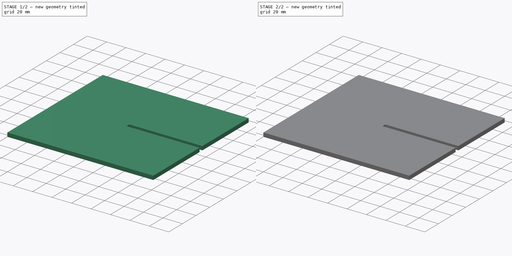
[diagram: build sequence overview — one tinted view per stage of 2, left to right]
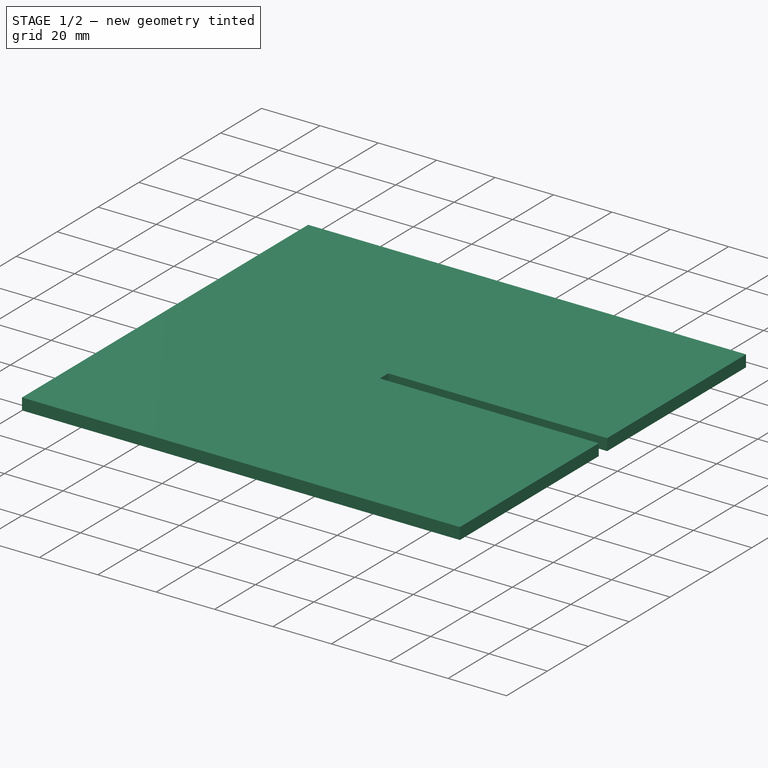
[diagram: stage 1 of 2 — iso view after this stage's code; geometry added in this stage tinted green]
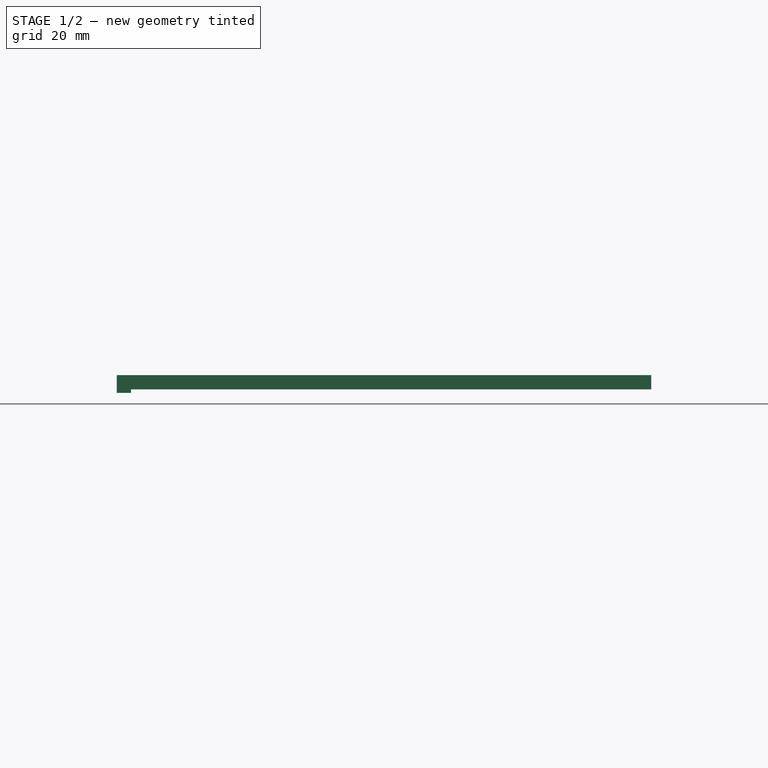
[diagram: stage 1 of 2 — front view after this stage's code; geometry added in this stage tinted green]
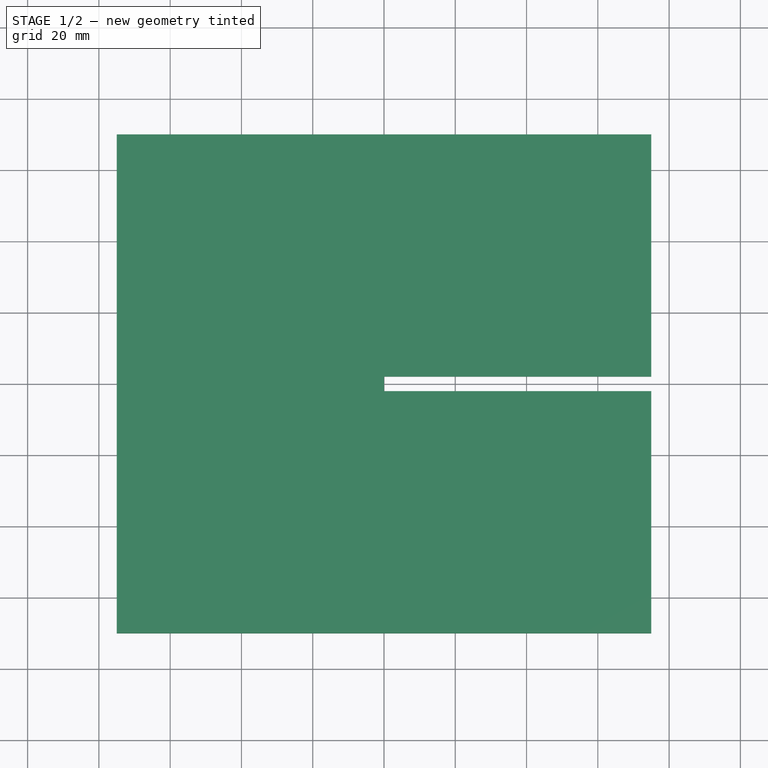
[diagram: stage 1 of 2 — top view after this stage's code; geometry added in this stage tinted green]
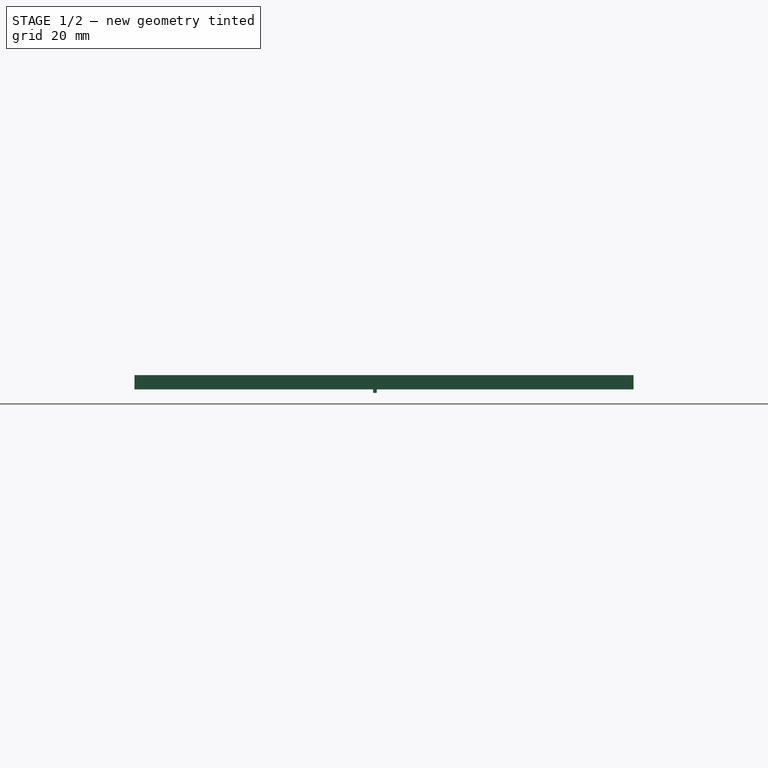
[diagram: stage 1 of 2 — right view after this stage's code; geometry added in this stage tinted green]
FCSTD DOCUMENT  (FreeCAD 0.19R22611 (Git))
Label: divider
License: All rights reserved
LicenseURL: http://en.wikipedia.org/wiki/All_rights_reserved
objects: Sketcher::SketchObject×3, PartDesign::Pad×3, PartDesign::Body×1
note: 10 computed .brp shape members not serialized (recipe doc carries the construction recipe); baked Part::Feature solids carry a one-line shape summary decoded from their .brp

FEATURE [Sketcher::SketchObject] Sketch
  MapMode = 5
  Support = -> [XY_Plane]
  sketch-geometry (8):
    g0: LineSegment StartX=75 StartY=70 StartZ=0 EndX=-75 EndY=70 EndZ=0
    g1: LineSegment StartX=-75 StartY=70 StartZ=0 EndX=-75 EndY=-70 EndZ=0
    g2: LineSegment StartX=-75 StartY=-70 StartZ=0 EndX=75 EndY=-70 EndZ=0
    g3: LineSegment StartX=75 StartY=-70 StartZ=0 EndX=75 EndY=-2.05 EndZ=0
    g4: LineSegment StartX=75 StartY=-2.05 StartZ=0 EndX=0 EndY=-2.05 EndZ=0
    g5: LineSegment StartX=0 StartY=-2.05 StartZ=0 EndX=0 EndY=2.05 EndZ=0
    g6: LineSegment StartX=0 StartY=2.05 StartZ=0 EndX=75 EndY=2.05 EndZ=0
    g7: LineSegment StartX=75 StartY=70 StartZ=0 EndX=75 EndY=2.05 EndZ=0
  constraints (21):
    c: Horizontal(g0)
    c: Coincident(g3,g2)
    c: Vertical(g3)
    c: Horizontal(g4)
    c: Coincident(g0,g1)
    c: Distance(g1) = 140
    c: Distance(g5) = 4.1
    c: Coincident(g4,g5)
    c: Symmetric(g2,g1,g-2)
    c: Equal(g2,g0)
    c: Coincident(g1,g2)
    c: Distance(g0) = 150
    c: Symmetric(g0,g1,g-1)
    c: Coincident(g3,g4)
    c: Coincident(g5,g6)
    c: Vertical(g7)
    c: Coincident(g0,g7)
    c: Coincident(g7,g6)
    c: Symmetric(g5,g4,g-1)
    c: Equal(g7,g3)
    c: PointOnObject(g-1,g5)
FEATURE [PartDesign::Pad] Pad
  Direction = (1,1,1)
  Length = 4
  Length2 = 100
  Profile = -> Sketch
  Type = 0
FEATURE [Sketcher::SketchObject] Sketch001
  MapMode = 5
  Placement = pos=(0,0,0) rot=(1,0,0;3.14159rad)
  Support = -> [Pad]
  sketch-geometry (4):
    g0: LineSegment StartX=-75 StartY=3.05 StartZ=0 EndX=-71 EndY=3.05 EndZ=0
    g1: LineSegment StartX=-71 StartY=3.05 StartZ=0 EndX=-71 EndY=2.05 EndZ=0
    g2: LineSegment StartX=-71 StartY=2.05 StartZ=0 EndX=-75 EndY=2.05 EndZ=0
    g3: LineSegment StartX=-75 StartY=2.05 StartZ=0 EndX=-75 EndY=3.05 EndZ=0
  constraints (12):
    c: Coincident(g0,g1)
    c: Coincident(g1,g2)
    c: Coincident(g2,g3)
    c: Coincident(g3,g0)
    c: Horizontal(g0)
    c: Horizontal(g2)
    c: Vertical(g1)
    c: Vertical(g3)
    c: Distance(g1) = 1
    c: Distance(g0) = 4
    c: DistanceY(g-1,g1) = 2.05
    c: DistanceX(g2,g-1) = 75
FEATURE [PartDesign::Pad] Pad001
  BaseFeature = -> Pad
  Direction = (1,1,1)
  Length = 1
  Length2 = 100
  Profile = -> Sketch001
  Type = 0
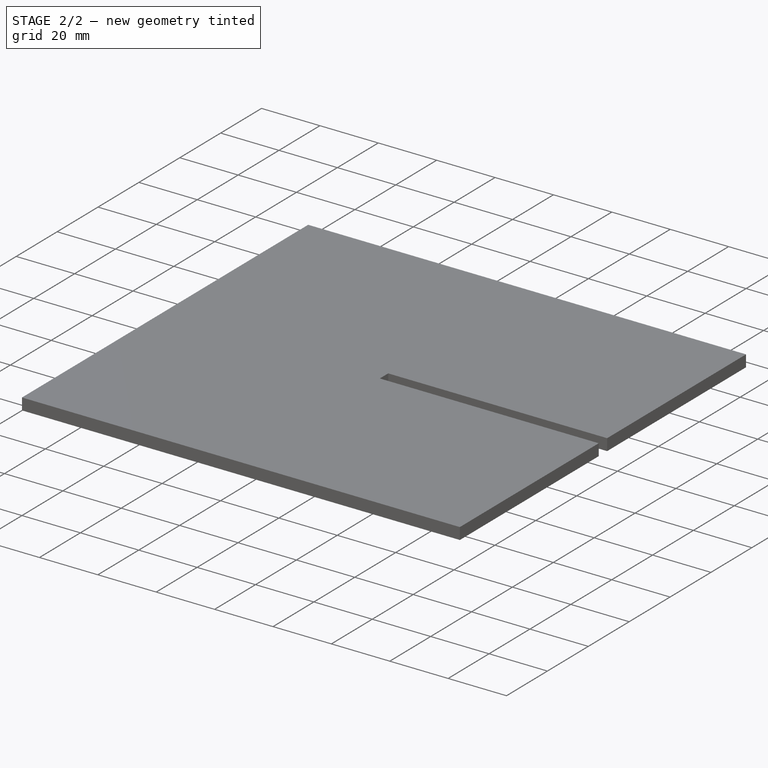
[diagram: stage 2 of 2 — iso view after this stage's code; geometry added in this stage tinted green]
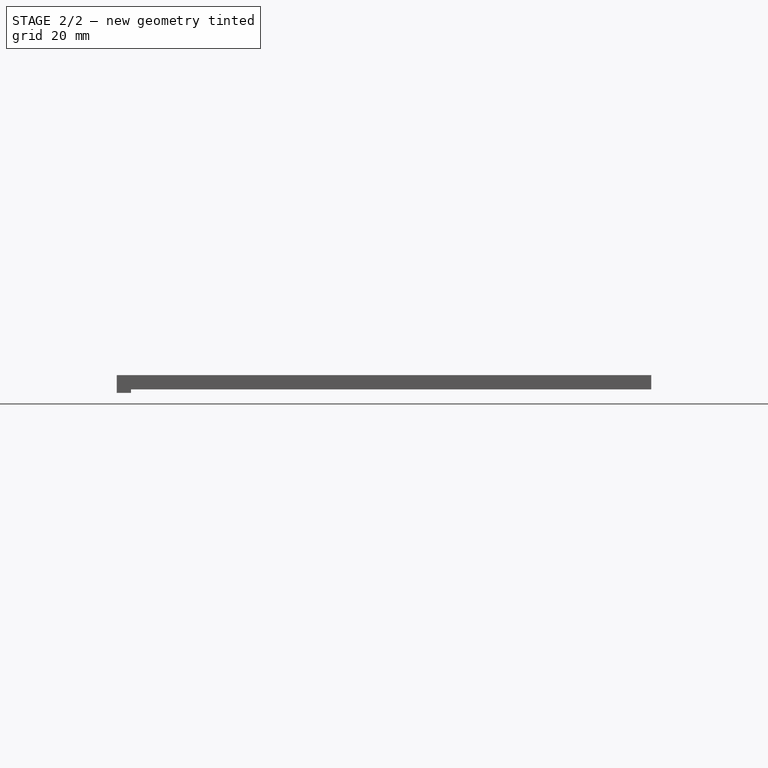
[diagram: stage 2 of 2 — front view after this stage's code; geometry added in this stage tinted green]
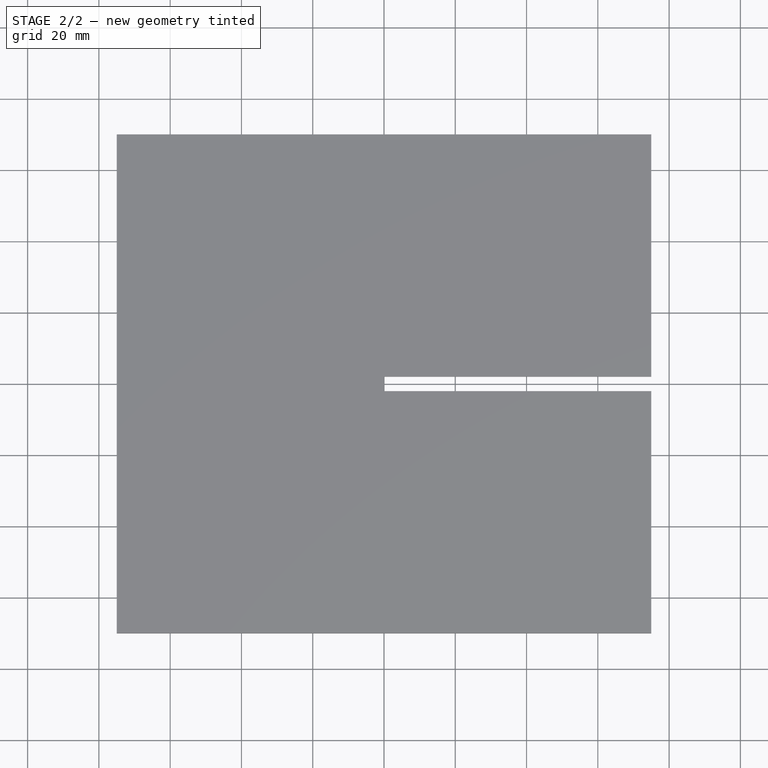
[diagram: stage 2 of 2 — top view after this stage's code; geometry added in this stage tinted green]
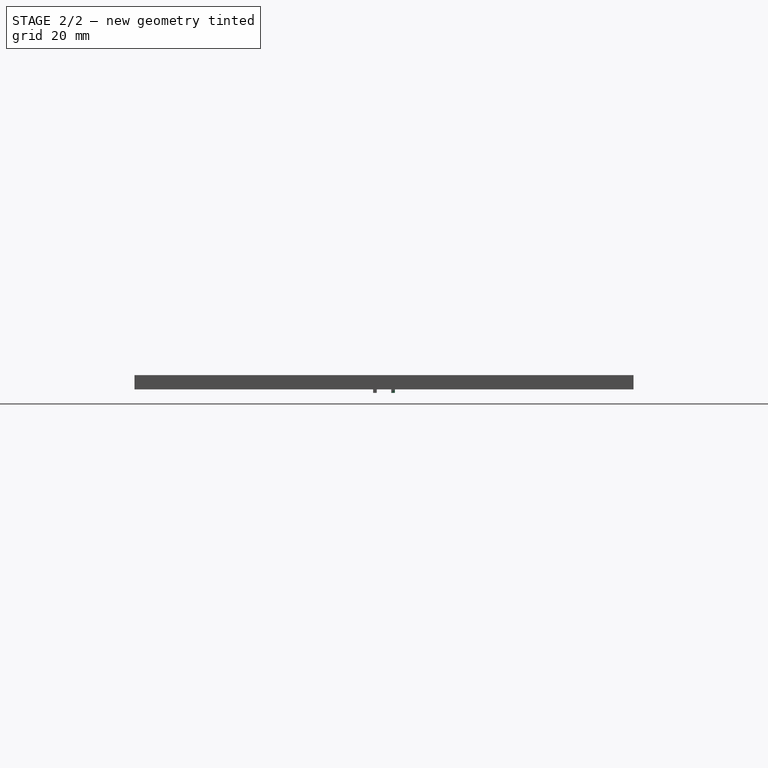
[diagram: stage 2 of 2 — right view after this stage's code; geometry added in this stage tinted green]
FEATURE [Sketcher::SketchObject] Sketch002
  MapMode = 5
  Placement = pos=(0,0,0) rot=(1,0,0;3.14159rad)
  Support = -> [Pad001]
  sketch-geometry (4):
    g0: LineSegment StartX=-75 StartY=-2.05 StartZ=0 EndX=-71 EndY=-2.05 EndZ=0
    g1: LineSegment StartX=-71 StartY=-2.05 StartZ=0 EndX=-71 EndY=-3.05 EndZ=0
    g2: LineSegment StartX=-71 StartY=-3.05 StartZ=0 EndX=-75 EndY=-3.05 EndZ=0
    g3: LineSegment StartX=-75 StartY=-3.05 StartZ=0 EndX=-75 EndY=-2.05 EndZ=0
  constraints (12):
    c: Coincident(g0,g1)
    c: Coincident(g1,g2)
    c: Coincident(g2,g3)
    c: Coincident(g3,g0)
    c: Horizontal(g0)
    c: Horizontal(g2)
    c: Vertical(g1)
    c: Vertical(g3)
    c: Distance(g0) = 4
    c: Distance(g1) = 1
    c: DistanceY(g0,g-1) = 2.05
    c: DistanceX(g0,g-1) = 75
FEATURE [PartDesign::Pad] Pad002
  BaseFeature = -> Pad001
  Direction = (1,1,1)
  Length = 1
  Length2 = 100
  Profile = -> Sketch002
  Type = 0
FEATURE [PartDesign::Body] Body
  Group = -> [Sketch,Pad,Sketch001,Pad001,Sketch002,Pad002]
  Origin = -> Origin
  Tip = -> Pad002
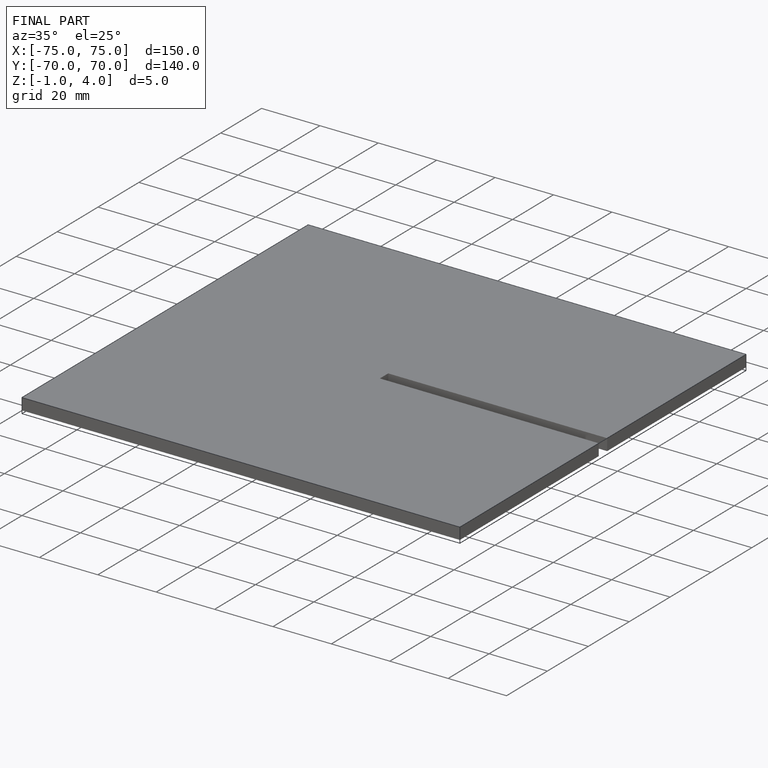
[diagram: finished part — iso view with bounding-box wireframe]
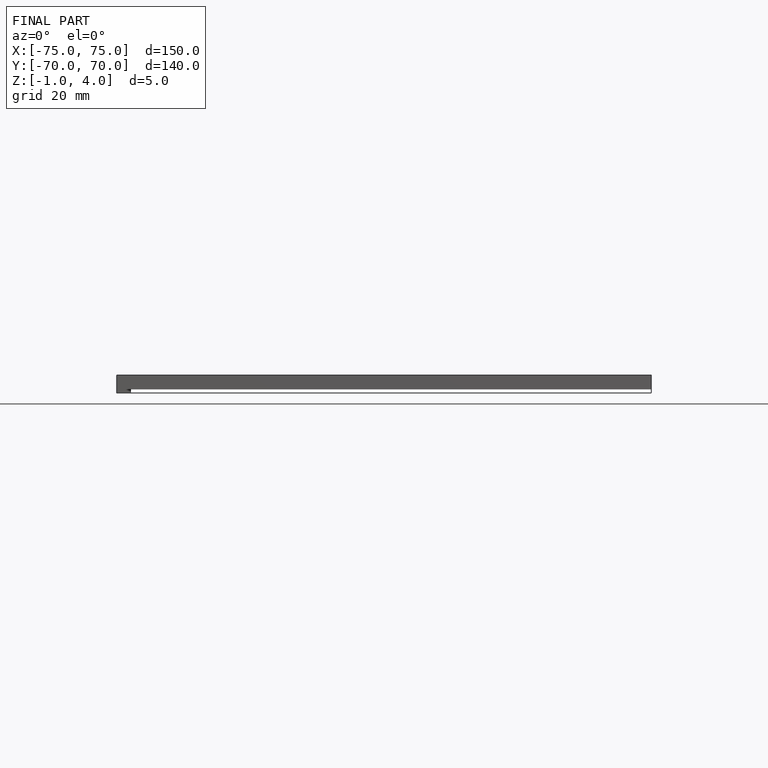
[diagram: finished part — front view with bounding-box wireframe]
